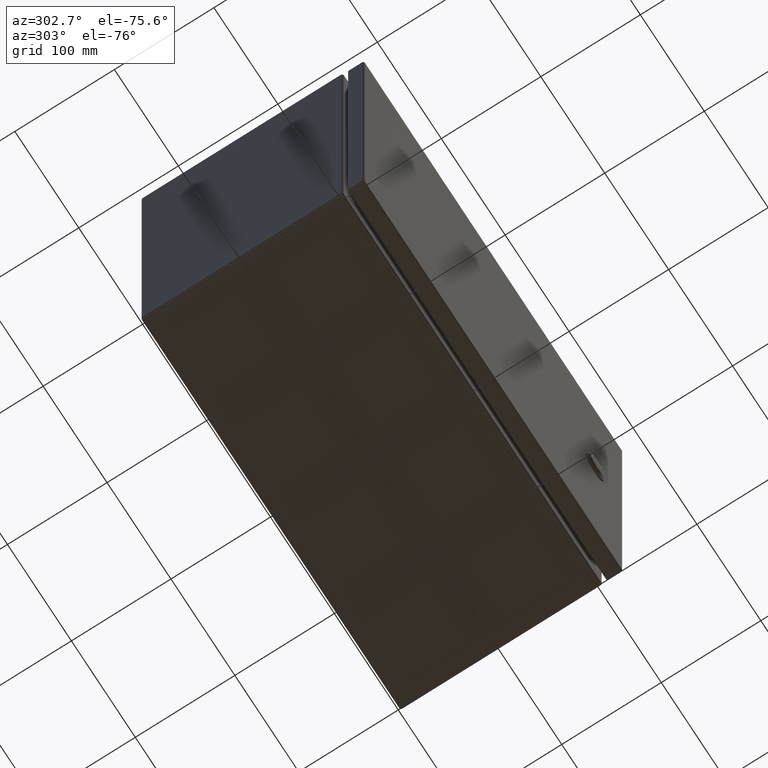
[diagram: clean part render]
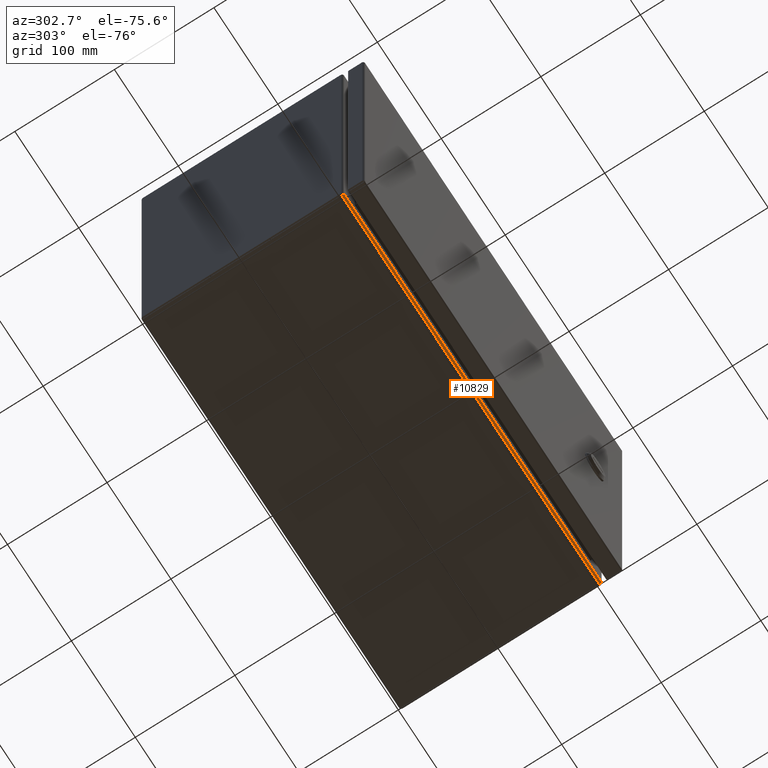
[diagram: same view with one face highlighted and labeled with its STEP entity id]
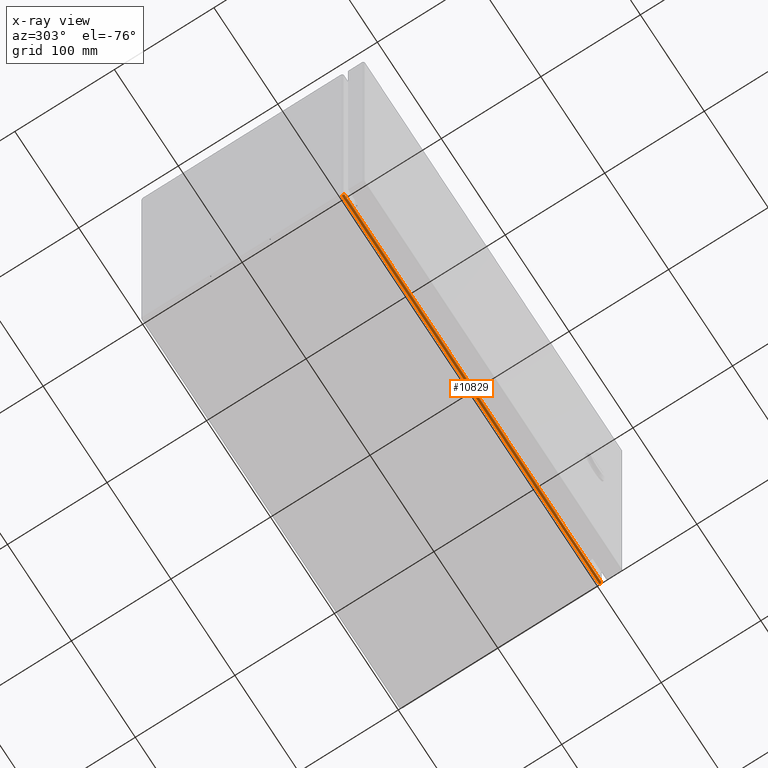
[diagram: x-ray of the same camera — body ghosted, the highlighted face saturated]
A machine part, auxiliary view. The second image highlights one B-rep face of the part: STEP entity #10829.
The next image is the same camera in x-ray: the body ghosted, the highlighted face saturated — about 0% of this face is hidden behind the body in this view.
In plain terms, the highlighted cylindrical surface (edge-blend (fillet) strip) has radius 2.1844 mm, axis along (-1, -0, 0).
Its self-contained STEP definition (entity closure, byte-faithful):
#169 = EDGE_CURVE ( 'NONE', #17187, #12658, #17972, .T. ) ;
#1264 = CARTESIAN_POINT ( 'NONE',  ( 7.938514084030511953, -7.925575828238407006, -7.999410494781770353 ) ) ;
#1361 = CARTESIAN_POINT ( 'NONE',  ( 7.929296324544961472, -7.971751724119800819, -7.977972100963451219 ) ) ;
#2301 = CARTESIAN_POINT ( 'NONE',  ( -55.44149999999999778, -7.914000000000000590, -8.000000000000001776 ) ) ;
#2803 = CARTESIAN_POINT ( 'NONE',  ( -7.937026089768808745, -7.937027409197084715, -7.997659888773647197 ) ) ;
#2968 = CARTESIAN_POINT ( 'NONE',  ( 7.906020262876999993, -8.000000000000001776, -7.914000000000000590 ) ) ;
#3066 = LINE ( 'NONE', #8608, #11790 ) ;
#3103 = DIRECTION ( 'NONE',  ( -1.000000000000000000, -9.854884855800310504E-18, 9.854884855800310504E-18 ) ) ;
#3112 = ORIENTED_EDGE ( 'NONE', *, *, #15052, .T. ) ;
#3133 = CARTESIAN_POINT ( 'NONE',  ( 7.936922644997816967, -7.936824700365364471, -7.997114291620055049 ) ) ;
#3214 = DIRECTION ( 'NONE',  ( 0.0000000000000000000, 0.0000000000000000000, 1.000000000000000000 ) ) ;
#3544 = CYLINDRICAL_SURFACE ( 'NONE', #11092, 0.08600000000000011802 ) ;
#3878 = EDGE_CURVE ( 'NONE', #12658, #9216, #7281, .T. ) ;
#5606 = ORIENTED_EDGE ( 'NONE', *, *, #18588, .T. ) ;
#7281 = LINE ( 'NONE', #2301, #10302 ) ;
#7386 = CARTESIAN_POINT ( 'NONE',  ( -7.914643753435335327, -7.997998131381561571, -7.935527370502112099 ) ) ;
#8011 = CARTESIAN_POINT ( 'NONE',  ( 7.916529347895193247, -7.995879998719297888, -7.940869937943863199 ) ) ;
#8608 = CARTESIAN_POINT ( 'NONE',  ( 7.939822017203386650, -8.000000000000001776, -7.914000000000000590 ) ) ;
#8646 = CARTESIAN_POINT ( 'NONE',  ( 7.939822017203386650, -7.914000000000000590, -7.914000000000000590 ) ) ;
#9216 = VERTEX_POINT ( 'NONE', #15510 ) ;
#9438 = B_SPLINE_CURVE_WITH_KNOTS ( 'NONE', 3,
 ( #9781, #13132, #1264, #3133, #15122, #20137, #14696, #9879, #1361, #21899, #20039, #8011, #16467, #13027, #10118, #21477 ),
 .UNSPECIFIED., .F., .F.,
 ( 4, 2, 2, 2, 2, 2, 2, 4 ),
 ( 0.0000000000000000000, 0.0004413482791197532334, 0.0008826965582395064668, 0.001324044837359259754, 0.001765393116479012934, 0.002648089674718519509, 0.003089437953838249269, 0.003530786232957979030 ),
 .UNSPECIFIED. ) ;
#9674 = CARTESIAN_POINT ( 'NONE',  ( -7.910652935628676552, -8.000000000000003553, -7.924766499293924404 ) ) ;
#9772 = CARTESIAN_POINT ( 'NONE',  ( -7.906020262876999993, -8.000000000000001776, -7.914000000000000590 ) ) ;
#9781 = CARTESIAN_POINT ( 'NONE',  ( 7.939822017203382210, -7.914000000000000590, -8.000000000000001776 ) ) ;
#9879 = CARTESIAN_POINT ( 'NONE',  ( 7.930592204684163704, -7.967349783286262976, -7.981692681208352624 ) ) ;
#10118 = CARTESIAN_POINT ( 'NONE',  ( 7.908340108336364693, -7.999999999999997335, -7.919391404884192021 ) ) ;
#10302 = VECTOR ( 'NONE', #14065, 39.37007874015748143 ) ;
#10829 = ADVANCED_FACE ( 'NONE', ( #16966 ), #3544, .T. ) ;
#11092 = AXIS2_PLACEMENT_3D ( 'NONE', #8646, #3103, #3214 ) ;
#11343 = ORIENTED_EDGE ( 'NONE', *, *, #169, .T. ) ;
#11425 = CARTESIAN_POINT ( 'NONE',  ( -7.906020262876999993, -8.000000000000001776, -7.914000000000000590 ) ) ;
#11790 = VECTOR ( 'NONE', #16711, 39.37007874015748143 ) ;
#12658 = VERTEX_POINT ( 'NONE', #16265 ) ;
#13019 = CARTESIAN_POINT ( 'NONE',  ( -7.939822017203382210, -7.914000000000000590, -8.000000000000001776 ) ) ;
#13027 = CARTESIAN_POINT ( 'NONE',  ( 7.910499447133847895, -7.999496243687171493, -7.924787443748388505 ) ) ;
#13132 = CARTESIAN_POINT ( 'NONE',  ( 7.939212457685699498, -7.919843763973110740, -7.999999999999997335 ) ) ;
#13958 = EDGE_LOOP ( 'NONE', ( #18800, #3112, #5606, #11343 ) ) ;
#14065 = DIRECTION ( 'NONE',  ( 1.000000000000000000, 2.731123248400746983E-33, -9.854884855800310504E-18 ) ) ;
#14170 = CARTESIAN_POINT ( 'NONE',  ( -7.926463950099551958, -7.979772924488679919, -7.969698554293109360 ) ) ;
#14696 = CARTESIAN_POINT ( 'NONE',  ( 7.932960341739529575, -7.957947866725951336, -7.988142319063445740 ) ) ;
#14787 = CARTESIAN_POINT ( 'NONE',  ( -7.924960500121217777, -7.983286916938585165, -7.965246317501931905 ) ) ;
#15052 = EDGE_CURVE ( 'NONE', #9216, #18444, #9438, .T. ) ;
#15122 = CARTESIAN_POINT ( 'NONE',  ( 7.936018136723951955, -7.942400889147968712, -7.995377535878720465 ) ) ;
#15510 = CARTESIAN_POINT ( 'NONE',  ( 7.939822017203382210, -7.914000000000000590, -8.000000000000001776 ) ) ;
#16265 = CARTESIAN_POINT ( 'NONE',  ( -7.939822017203382210, -7.914000000000000590, -8.000000000000001776 ) ) ;
#16458 = CARTESIAN_POINT ( 'NONE',  ( -7.920097798154841939, -7.991837167479843629, -7.950988563067473258 ) ) ;
#16467 = CARTESIAN_POINT ( 'NONE',  ( 7.914600544415752559, -7.997437998095406897, -7.935542448817887617 ) ) ;
#16711 = DIRECTION ( 'NONE',  ( -1.000000000000000000, -9.854884855800310504E-18, 9.854884855800310504E-18 ) ) ;
#16966 = FACE_OUTER_BOUND ( 'NONE', #13958, .T. ) ;
#17187 = VERTEX_POINT ( 'NONE', #11425 ) ;
#17972 = B_SPLINE_CURVE_WITH_KNOTS ( 'NONE', 3,
 ( #9772, #9674, #7386, #16458, #21363, #14787, #14170, #18129, #20970, #2803, #21676, #13019 ),
 .UNSPECIFIED., .F., .F.,
 ( 4, 2, 2, 2, 2, 4 ),
 ( 9.205483015737869229E-17, 0.0008804803490556773740, 0.001320720523583519476, 0.001760960698111361470, 0.002641441047167100535, 0.003521921396222840034 ),
 .UNSPECIFIED. ) ;
#18129 = CARTESIAN_POINT ( 'NONE',  ( -7.930665564002249646, -7.967899658231945459, -7.981973914312932017 ) ) ;
#18444 = VERTEX_POINT ( 'NONE', #2968 ) ;
#18588 = EDGE_CURVE ( 'NONE', #18444, #17187, #3066, .T. ) ;
#18800 = ORIENTED_EDGE ( 'NONE', *, *, #3878, .T. ) ;
#20039 = CARTESIAN_POINT ( 'NONE',  ( 7.921936387699655135, -7.989736030276787027, -7.956206216833914269 ) ) ;
#20137 = CARTESIAN_POINT ( 'NONE',  ( 7.934035660990850225, -7.952958514397507450, -7.990883990570379680 ) ) ;
#20970 = CARTESIAN_POINT ( 'NONE',  ( -7.933038852956986631, -7.958272626097712354, -7.988626892889636011 ) ) ;
#21363 = CARTESIAN_POINT ( 'NONE',  ( -7.921782023296096042, -7.989304295497007047, -7.955906145087127790 ) ) ;
#21477 = CARTESIAN_POINT ( 'NONE',  ( 7.906020262876999993, -8.000000000000001776, -7.914000000000000590 ) ) ;
#21676 = CARTESIAN_POINT ( 'NONE',  ( -7.938604778824339014, -7.925669498350496944, -7.999999999999996447 ) ) ;
#21899 = CARTESIAN_POINT ( 'NONE',  ( 7.925149272820630308, -7.983521625887525452, -7.965860475276553387 ) ) ;